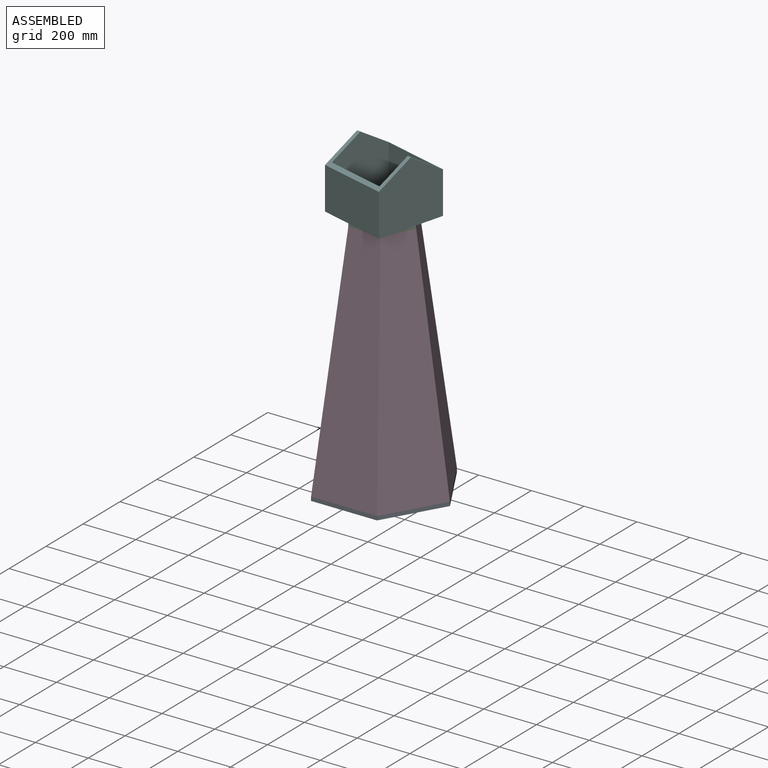
[diagram: assembled view]
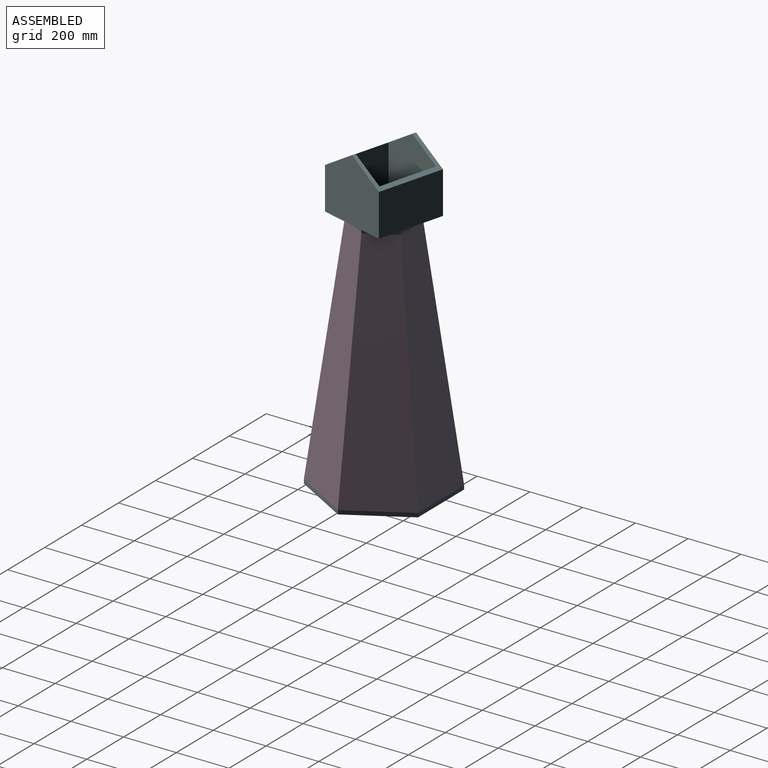
[diagram: assembled view, second angle]
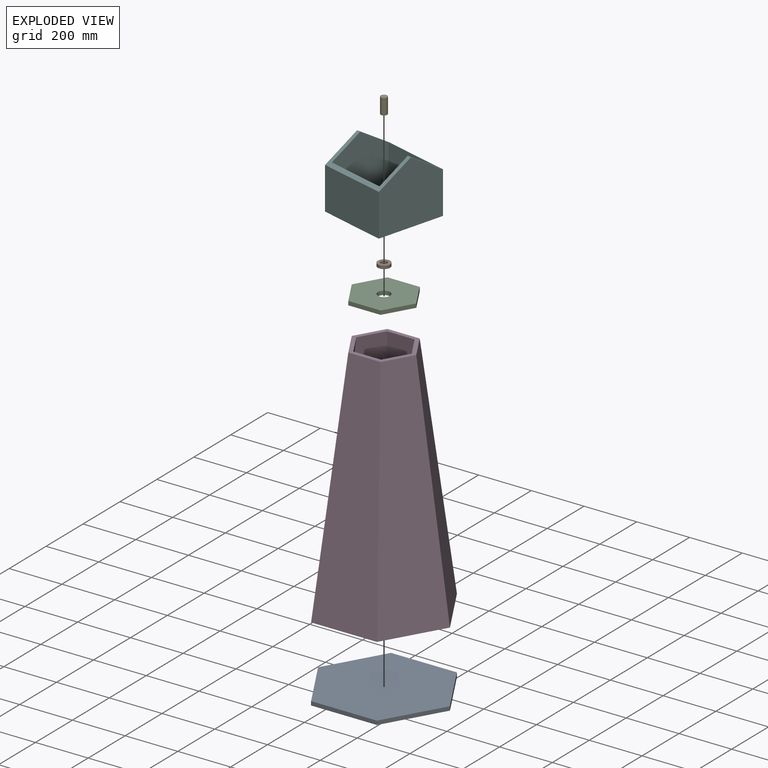
[diagram: exploded view]
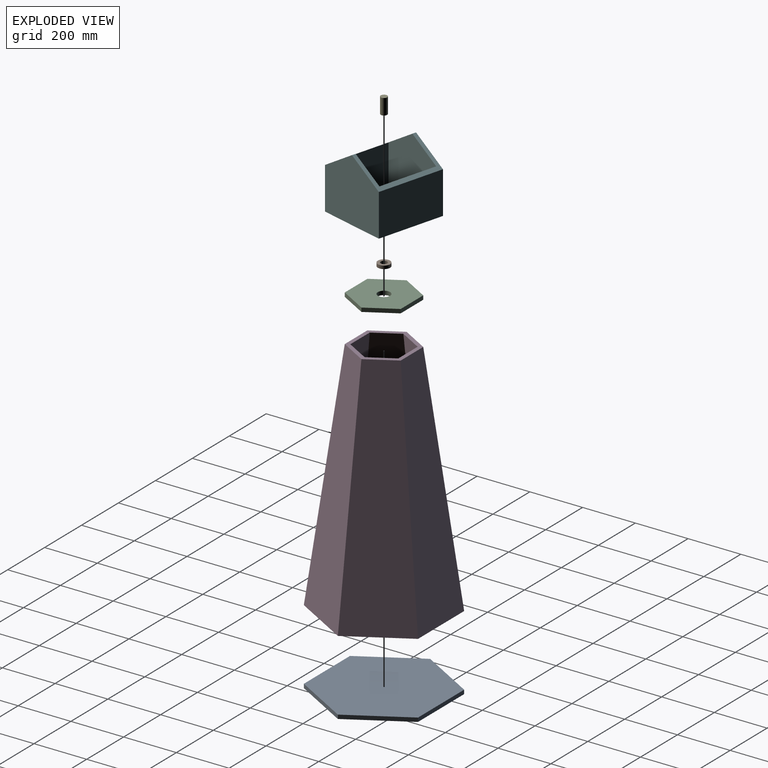
[diagram: exploded view, second angle]
ASSEMBLY  parts=6 mates=5
PART A: 8 faces, bbox 500x433x15 mm
  f0: plane 250x15mm, normal (0,-1,0), area 3750mm2, adj f1,f5,f6,f7
  f1: plane 216.51x125mm, normal (-0.87,-0.5,0), area 3750mm2, adj f0,f2,f6,f7
  f2: plane 216.51x125mm, normal (-0.87,0.5,0), area 3750mm2, adj f1,f3,f6,f7
  f3: plane 250x15mm, normal (0,1,0), area 3750mm2, adj f2,f4,f6,f7
  f4: plane 216.51x125mm, normal (0.87,0.5,0), area 3750mm2, adj f3,f5,f6,f7
  f5: plane 216.51x125mm, normal (0.87,-0.5,0), area 3750mm2, adj f0,f4,f6,f7
  f6: plane 500x433.01mm, normal (0,0,-1), area 162379.8mm2, adj f0,f1,f2,f3,f4,f5
  f7: plane 500x433.01mm, normal (0,0,1), area 162379.8mm2, adj f0,f1,f2,f3,f4,f5
PART B: 4 faces, bbox 47x47x12 mm
  f0: cylinder r=12.5mm len=25mm, axis (0,0,-1), area 942.5mm2, adj f2,f3
  f1: cylinder r=23.5mm len=47mm, axis (0,0,-1), area 1771.9mm2, adj f2,f3
  f2: plane 47x47mm, normal (0,0,1), area 1244.1mm2, adj f0,f1
  f3: plane 47x47mm, normal (0,0,-1), area 1244.1mm2, adj f0,f1
PART C: 9 faces, bbox 244.8x212x15 mm
  f0: plane 106x61.2mm, normal (-0.87,-0.5,0), area 1836mm2, adj f1,f5,f6,f7
  f1: plane 122.4x15mm, normal (0,-1,0), area 1836mm2, adj f0,f2,f6,f7
  f2: plane 106x61.2mm, normal (0.87,-0.5,0), area 1836mm2, adj f1,f3,f6,f7
  f3: plane 106x61.2mm, normal (0.87,0.5,0), area 1836mm2, adj f2,f4,f6,f7
  f4: plane 122.4x15mm, normal (0,1,0), area 1836mm2, adj f3,f5,f6,f7
  f5: plane 106x61.2mm, normal (-0.87,0.5,0), area 1836mm2, adj f0,f4,f6,f7
  f6: plane 244.8x212mm, normal (0,0,1), area 37187.9mm2, adj f0,f1,f2,f3,f4,f5,f8
  f7: plane 244.8x212mm, normal (0,0,-1), area 37187.9mm2, adj f0,f1,f2,f3,f4,f5,f8
  f8: cylinder r=23.5mm len=47mm, axis (0,0,1), area 2214.8mm2, adj f6,f7
PART D: 14 faces, bbox 500x433x900 mm
  f0: plane 900x250mm, normal (0,-0.99,0.12), area 168837.8mm2, adj f1,f5,f6,f7
  f1: plane 900x216.51mm, normal (0.86,-0.5,0.12), area 168837.8mm2, adj f0,f2,f6,f7
  f2: plane 900x216.51mm, normal (0.86,0.5,0.12), area 168837.8mm2, adj f1,f3,f6,f7
  f3: plane 900x250mm, normal (0,0.99,0.12), area 168837.8mm2, adj f2,f4,f6,f7
  f4: plane 900x216.51mm, normal (-0.86,0.5,0.12), area 168837.8mm2, adj f3,f5,f6,f7
  f5: plane 900x216.51mm, normal (-0.86,-0.5,0.12), area 168837.8mm2, adj f0,f4,f6,f7
  f6: plane 244.8x212mm, normal (0,0,1), area 10307.4mm2, adj f0,f1,f2,f3,f4,f5,f8,f9
  f7: plane 500x433.01mm, normal (0,0,-1), area 21877.8mm2, adj f0,f1,f2,f3,f4,f5,f8,f9
  f8: plane 900x232.55mm, normal (0,0.99,-0.12), area 153014.4mm2, adj f6,f7,f9,f13
  f9: plane 900x201.39mm, normal (-0.86,0.5,-0.12), area 153014.4mm2, adj f6,f7,f8,f10
  f10: plane 900x201.39mm, normal (-0.86,-0.5,-0.12), area 153014.4mm2, adj f6,f7,f9,f11
  f11: plane 900x232.55mm, normal (0,-0.99,-0.12), area 153014.4mm2, adj f6,f7,f10,f12
  f12: plane 900x201.39mm, normal (0.86,-0.5,-0.12), area 153014.4mm2, adj f6,f7,f11,f13
  f13: plane 900x201.39mm, normal (0.86,0.5,-0.12), area 153014.4mm2, adj f6,f7,f8,f12
PART E: 3 faces, bbox 25x25x60 mm
  f0: cylinder r=12.5mm len=60mm, axis (0,0,-1), area 4712.4mm2, adj f1,f2
  f1: plane 25x25mm, normal (0,0,1), area 490.9mm2, adj f0
  f2: plane 25x25mm, normal (0,0,-1), area 490.9mm2, adj f0
PART F: 18 faces, bbox 260x260x240 mm
  f0: plane 230x230mm, normal (0,0,-1), area 52409.1mm2, adj f12,f13,f14,f15,f16
  f1: plane 260x130mm, normal (-0.52,0,0.85), area 8630.2mm2, adj f2,f3,f5,f6,f7,f10,f11
  f2: plane 260x130mm, normal (0.52,0,0.85), area 8630.2mm2, adj f1,f4,f5,f6,f9,f10,f11
  f3: plane 260x160mm, normal (-1,0,0), area 41600mm2, adj f1,f5,f6,f17
  f4: plane 260x160mm, normal (1,0,0), area 41600mm2, adj f2,f5,f6,f17
  f5: plane 260x240mm, normal (0,-1,0), area 52000mm2, adj f1,f2,f3,f4,f17
  f6: plane 260x240mm, normal (0,1,0), area 52000mm2, adj f1,f2,f3,f4,f17
  f7: plane 230x144.23mm, normal (1,0,0), area 33173.1mm2, adj f1,f8,f10,f11
  f8: plane 230x230mm, normal (0,0,1), area 52409.1mm2, adj f7,f9,f10,f11,f12
  f9: plane 230x144.23mm, normal (-1,0,0), area 33173.1mm2, adj f2,f8,f10,f11
  f10: plane 230x215mm, normal (0,1,0), area 41311.5mm2, adj f1,f2,f7,f8,f9
  f11: plane 230x215mm, normal (0,-1,0), area 41311.5mm2, adj f1,f2,f7,f8,f9
  f12: cylinder r=12.5mm len=25mm, axis (0,0,-1), area 1178.1mm2, adj f0,f8
  f13: plane 230x10mm, normal (0,1,0), area 2300mm2, adj f0,f14,f16,f17
  f14: plane 230x10mm, normal (-1,0,0), area 2300mm2, adj f0,f13,f15,f17
  f15: plane 230x10mm, normal (0,-1,0), area 2300mm2, adj f0,f14,f16,f17
  f16: plane 230x10mm, normal (1,0,0), area 2300mm2, adj f0,f13,f15,f17
  f17: plane 260x260mm, normal (0,0,-1), area 14700mm2, adj f3,f4,f5,f6,f13,f14,f15,f16
PLACE A t=(95.71,94.38,-612.36)mm
PLACE B t=(95.71,94.38,-624.36)mm
PLACE C t=(95.71,94.38,-612.36)mm
PLACE D t=(95.71,94.38,-612.36)mm
PLACE E rot(axis=(0,0,-1),105deg) t=(95.71,94.38,-654.36)mm
PLACE F rot(axis=(0,0,-1),105deg) t=(105.77,-370.34,180.86)mm
MATE fastened D.f7 <-> A.f7  axis (0,0,-1) through (95.71,310.88,-612.36)mm
MATE fastened D.f6 <-> C.f7  axis (0,0,1) through (3.91,147.38,287.64)mm
MATE fastened F.f12 <-> E.f0  axis (0,0,1) through (95.71,94.38,332.64)mm
MATE fastened C.f8 <-> B.f0  axis (0,0,1) through (95.71,94.38,302.64)mm
MATE revolute C.f8 <-> E.f0  axis (0,0,1) through (95.71,94.38,302.64)mm
